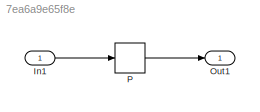
MODEL slx_7ea6a9e65f8e
KIND model
CONFIG AbsTol = auto
CONFIG EnableMultiTasking = off
CONFIG FixedStep = auto
CONFIG MaxStep = auto
CONFIG MinStep = auto
CONFIG RelTol = 1e-3
CONFIG SampleTimeConstraint = Unconstrained
CONFIG Solver = FixedStepDiscrete
CONFIG SolverName = FixedStepDiscrete
CONFIG StartTime = 0.0
CONFIG StopTime = 10.0
BLOCK [Inport] In1
  IconDisplay = Port number
  OutDataTypeStr = uint8
  PortDimensions = 4
BLOCK [Outport] Out1
  IconDisplay = Port number
BLOCK [Lookup_n-D] P
  BreakpointsForDimension1 = [13.9083039164169;63.6418929630231]
  BreakpointsForDimension1DataTypeStr = int8
  BreakpointsForDimension2 = [17.6532217600117;24.2409402742846;52.42306599512;66.8329842287683;94.6750041243692]
  BreakpointsForDimension2DataTypeStr = int8
  BreakpointsForDimension3 = [9.80810188133678;12.3640308065293;49.1078972227451]
  BreakpointsForDimension3DataTypeStr = int8
  BreakpointsForDimension4 = [40.8569941950685;92.745883735397]
  BreakpointsForDimension4DataTypeStr = int8
  ExtrapMethod = Clip
  FractionDataTypeStr = single
  InternalRulePriority = Speed
  NumberOfTableDimensions = 4
  OutDataTypeStr = single
  Ports = [1, 1]
  SaturateOnIntegerOverflow = on
  Table = reshape(repmat([4 5 6 7 8;16 19 20 21 22;10 18 23 24 25],2,2),[2,5,3,2])
  UseLastTableValue = on
  UseOneInputPortForAllInputData = on
LINE In1:1 -> P:1
LINE P:1 -> Out1:1
